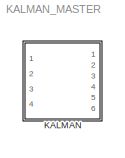
MODEL KALMAN_MASTER
KIND library
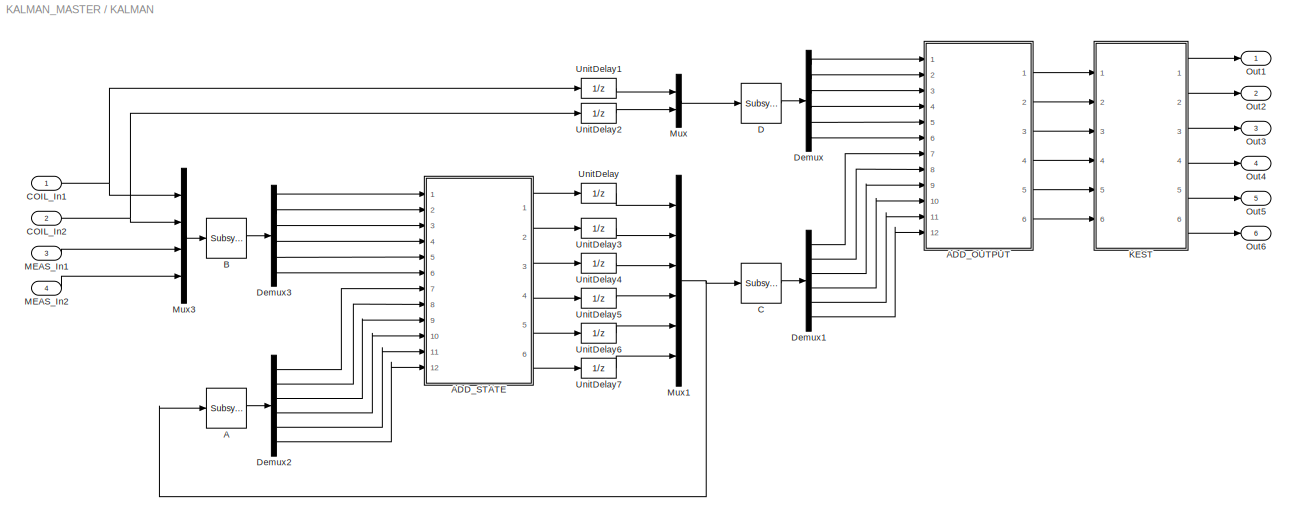
BLOCK [SubSystem] KALMAN
  Ports = [4, 6]
  RequestExecContextInheritance = off
  SID = 16
  Variant = off
BLOCK [Reference] KALMAN/A  REF=cdsMuxMatrix/Subsystem
  AttributesFormatString = %<Tag>
  Description = Any size matrix. Inputs and outputs must be connected using Mux and Demux parts.
  Ports = [1, 1]
  SID = 4
  SourceBlock = cdsMuxMatrix/Subsystem
  SourceType = SubSystem
  Tag = cdsMuxMatrix
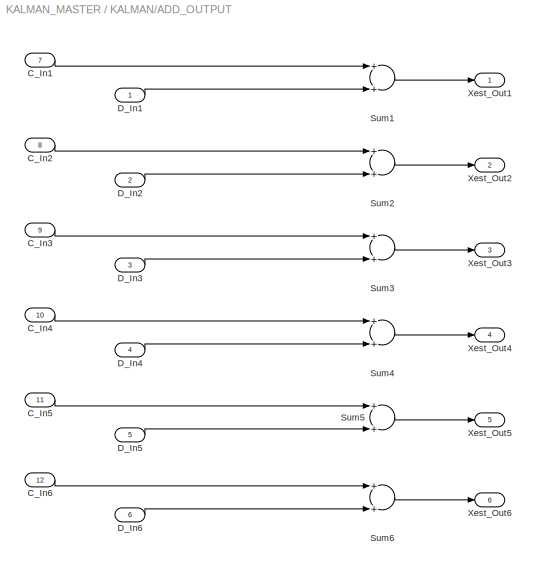
BLOCK [SubSystem] KALMAN/ADD_OUTPUT
  Ports = [12, 6]
  RequestExecContextInheritance = off
  SID = 59
  Variant = off
BLOCK [Inport] KALMAN/ADD_OUTPUT/C_In1
  IconDisplay = Port number
  Port = 7
  SID = 66
BLOCK [Inport] KALMAN/ADD_OUTPUT/C_In2
  IconDisplay = Port number
  Port = 8
  SID = 67
BLOCK [Inport] KALMAN/ADD_OUTPUT/C_In3
  IconDisplay = Port number
  Port = 9
  SID = 68
BLOCK [Inport] KALMAN/ADD_OUTPUT/C_In4
  IconDisplay = Port number
  Port = 10
  SID = 69
BLOCK [Inport] KALMAN/ADD_OUTPUT/C_In5
  IconDisplay = Port number
  Port = 11
  SID = 70
BLOCK [Inport] KALMAN/ADD_OUTPUT/C_In6
  IconDisplay = Port number
  Port = 12
  SID = 71
BLOCK [Inport] KALMAN/ADD_OUTPUT/D_In1
  IconDisplay = Port number
  SID = 60
BLOCK [Inport] KALMAN/ADD_OUTPUT/D_In2
  IconDisplay = Port number
  Port = 2
  SID = 61
BLOCK [Inport] KALMAN/ADD_OUTPUT/D_In3
  IconDisplay = Port number
  Port = 3
  SID = 62
BLOCK [Inport] KALMAN/ADD_OUTPUT/D_In4
  IconDisplay = Port number
  Port = 4
  SID = 63
BLOCK [Inport] KALMAN/ADD_OUTPUT/D_In5
  IconDisplay = Port number
  Port = 5
  SID = 64
BLOCK [Inport] KALMAN/ADD_OUTPUT/D_In6
  IconDisplay = Port number
  Port = 6
  SID = 65
BLOCK [Sum] KALMAN/ADD_OUTPUT/Sum1
  InputSameDT = off
  OutDataTypeStr = Inherit: Inherit via internal rule
  Ports = [2, 1]
  SID = 72
  SaturateOnIntegerOverflow = off
BLOCK [Sum] KALMAN/ADD_OUTPUT/Sum2
  InputSameDT = off
  OutDataTypeStr = Inherit: Inherit via internal rule
  Ports = [2, 1]
  SID = 73
  SaturateOnIntegerOverflow = off
BLOCK [Sum] KALMAN/ADD_OUTPUT/Sum3
  InputSameDT = off
  OutDataTypeStr = Inherit: Inherit via internal rule
  Ports = [2, 1]
  SID = 74
  SaturateOnIntegerOverflow = off
BLOCK [Sum] KALMAN/ADD_OUTPUT/Sum4
  InputSameDT = off
  OutDataTypeStr = Inherit: Inherit via internal rule
  Ports = [2, 1]
  SID = 75
  SaturateOnIntegerOverflow = off
BLOCK [Sum] KALMAN/ADD_OUTPUT/Sum5
  InputSameDT = off
  OutDataTypeStr = Inherit: Inherit via internal rule
  Ports = [2, 1]
  SID = 76
  SaturateOnIntegerOverflow = off
BLOCK [Sum] KALMAN/ADD_OUTPUT/Sum6
  InputSameDT = off
  OutDataTypeStr = Inherit: Inherit via internal rule
  Ports = [2, 1]
  SID = 77
  SaturateOnIntegerOverflow = off
BLOCK [Outport] KALMAN/ADD_OUTPUT/Xest_Out1
  IconDisplay = Port number
  SID = 78
BLOCK [Outport] KALMAN/ADD_OUTPUT/Xest_Out2
  IconDisplay = Port number
  Port = 2
  SID = 79
BLOCK [Outport] KALMAN/ADD_OUTPUT/Xest_Out3
  IconDisplay = Port number
  Port = 3
  SID = 80
BLOCK [Outport] KALMAN/ADD_OUTPUT/Xest_Out4
  IconDisplay = Port number
  Port = 4
  SID = 81
BLOCK [Outport] KALMAN/ADD_OUTPUT/Xest_Out5
  IconDisplay = Port number
  Port = 5
  SID = 82
BLOCK [Outport] KALMAN/ADD_OUTPUT/Xest_Out6
  IconDisplay = Port number
  Port = 6
  SID = 83
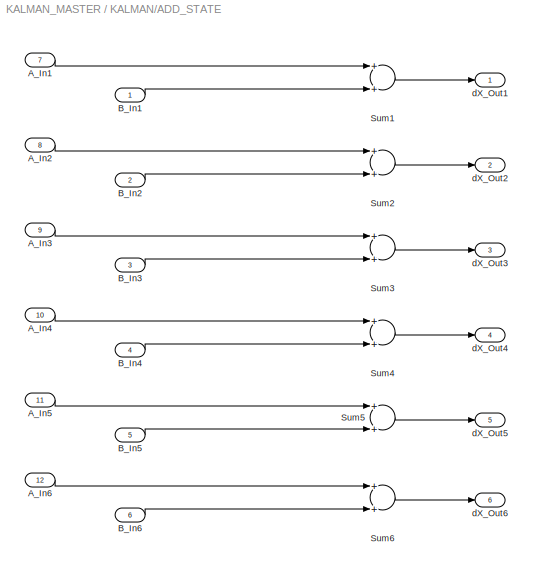
BLOCK [SubSystem] KALMAN/ADD_STATE
  Ports = [12, 6]
  RequestExecContextInheritance = off
  SID = 27
  Variant = off
BLOCK [Inport] KALMAN/ADD_STATE/A_In1
  IconDisplay = Port number
  Port = 7
  SID = 28
BLOCK [Inport] KALMAN/ADD_STATE/A_In2
  IconDisplay = Port number
  Port = 8
  SID = 30
BLOCK [Inport] KALMAN/ADD_STATE/A_In3
  IconDisplay = Port number
  Port = 9
  SID = 31
BLOCK [Inport] KALMAN/ADD_STATE/A_In4
  IconDisplay = Port number
  Port = 10
  SID = 32
BLOCK [Inport] KALMAN/ADD_STATE/A_In5
  IconDisplay = Port number
  Port = 11
  SID = 33
BLOCK [Inport] KALMAN/ADD_STATE/A_In6
  IconDisplay = Port number
  Port = 12
  SID = 34
BLOCK [Inport] KALMAN/ADD_STATE/B_In1
  IconDisplay = Port number
  SID = 40
BLOCK [Inport] KALMAN/ADD_STATE/B_In2
  IconDisplay = Port number
  Port = 2
  SID = 41
BLOCK [Inport] KALMAN/ADD_STATE/B_In3
  IconDisplay = Port number
  Port = 3
  SID = 42
BLOCK [Inport] KALMAN/ADD_STATE/B_In4
  IconDisplay = Port number
  Port = 4
  SID = 43
BLOCK [Inport] KALMAN/ADD_STATE/B_In5
  IconDisplay = Port number
  Port = 5
  SID = 44
BLOCK [Inport] KALMAN/ADD_STATE/B_In6
  IconDisplay = Port number
  Port = 6
  SID = 45
BLOCK [Sum] KALMAN/ADD_STATE/Sum1
  InputSameDT = off
  OutDataTypeStr = Inherit: Inherit via internal rule
  Ports = [2, 1]
  SID = 46
  SaturateOnIntegerOverflow = off
BLOCK [Sum] KALMAN/ADD_STATE/Sum2
  InputSameDT = off
  OutDataTypeStr = Inherit: Inherit via internal rule
  Ports = [2, 1]
  SID = 47
  SaturateOnIntegerOverflow = off
BLOCK [Sum] KALMAN/ADD_STATE/Sum3
  InputSameDT = off
  OutDataTypeStr = Inherit: Inherit via internal rule
  Ports = [2, 1]
  SID = 48
  SaturateOnIntegerOverflow = off
BLOCK [Sum] KALMAN/ADD_STATE/Sum4
  InputSameDT = off
  OutDataTypeStr = Inherit: Inherit via internal rule
  Ports = [2, 1]
  SID = 49
  SaturateOnIntegerOverflow = off
BLOCK [Sum] KALMAN/ADD_STATE/Sum5
  InputSameDT = off
  OutDataTypeStr = Inherit: Inherit via internal rule
  Ports = [2, 1]
  SID = 50
  SaturateOnIntegerOverflow = off
BLOCK [Sum] KALMAN/ADD_STATE/Sum6
  InputSameDT = off
  OutDataTypeStr = Inherit: Inherit via internal rule
  Ports = [2, 1]
  SID = 51
  SaturateOnIntegerOverflow = off
BLOCK [Outport] KALMAN/ADD_STATE/dX_Out1
  IconDisplay = Port number
  SID = 29
BLOCK [Outport] KALMAN/ADD_STATE/dX_Out2
  IconDisplay = Port number
  Port = 2
  SID = 35
BLOCK [Outport] KALMAN/ADD_STATE/dX_Out3
  IconDisplay = Port number
  Port = 3
  SID = 36
BLOCK [Outport] KALMAN/ADD_STATE/dX_Out4
  IconDisplay = Port number
  Port = 4
  SID = 37
BLOCK [Outport] KALMAN/ADD_STATE/dX_Out5
  IconDisplay = Port number
  Port = 5
  SID = 38
BLOCK [Outport] KALMAN/ADD_STATE/dX_Out6
  IconDisplay = Port number
  Port = 6
  SID = 39
BLOCK [Reference] KALMAN/B  REF=cdsMuxMatrix/Subsystem
  AttributesFormatString = %<Tag>
  Description = Any size matrix. Inputs and outputs must be connected using Mux and Demux parts.
  Ports = [1, 1]
  SID = 1
  SourceBlock = cdsMuxMatrix/Subsystem
  SourceType = SubSystem
  Tag = cdsMuxMatrix
BLOCK [Reference] KALMAN/C  REF=cdsMuxMatrix/Subsystem
  AttributesFormatString = %<Tag>
  Description = Any size matrix. Inputs and outputs must be connected using Mux and Demux parts.
  Ports = [1, 1]
  SID = 10
  SourceBlock = cdsMuxMatrix/Subsystem
  SourceType = SubSystem
  Tag = cdsMuxMatrix
BLOCK [Inport] KALMAN/COIL_In1
  IconDisplay = Port number
  SID = 2
BLOCK [Inport] KALMAN/COIL_In2
  IconDisplay = Port number
  Port = 2
  SID = 58
BLOCK [Reference] KALMAN/D  REF=cdsMuxMatrix/Subsystem
  AttributesFormatString = %<Tag>
  Description = Any size matrix. Inputs and outputs must be connected using Mux and Demux parts.
  Ports = [1, 1]
  SID = 12
  SourceBlock = cdsMuxMatrix/Subsystem
  SourceType = SubSystem
  Tag = cdsMuxMatrix
BLOCK [Demux] KALMAN/Demux
  DisplayOption = bar
  Outputs = 6
  Ports = [1, 6]
  SID = 20
BLOCK [Demux] KALMAN/Demux1
  DisplayOption = bar
  Outputs = 6
  Ports = [1, 6]
  SID = 21
BLOCK [Demux] KALMAN/Demux2
  DisplayOption = bar
  Outputs = 6
  Ports = [1, 6]
  SID = 24
BLOCK [Demux] KALMAN/Demux3
  DisplayOption = bar
  Outputs = 6
  Ports = [1, 6]
  SID = 26
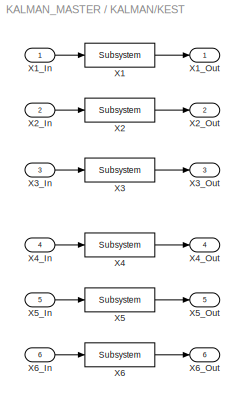
BLOCK [SubSystem] KALMAN/KEST
  Ports = [6, 6]
  RequestExecContextInheritance = off
  SID = 92
  Variant = off
BLOCK [Reference] KALMAN/KEST/X1  REF=cdsFilt/Subsystem
  AttributesFormatString = %<Tag>
  Description = Purpose:                                                                                                                                                                                                                                  \nStandard CDS IIR filter module.                                                                                                                                     ...<+1302ch>  <repeated x6 — deduplicated; at blocks: X1, X2, X3, X4, X5, X6>
  Ports = [1, 1]
  SID = 99
  SourceBlock = cdsFilt/Subsystem
  SourceType = SubSystem
  Tag = cdsFilt
BLOCK [Inport] KALMAN/KEST/X1_In
  IconDisplay = Port number
  SID = 93
BLOCK [Outport] KALMAN/KEST/X1_Out
  IconDisplay = Port number
  SID = 105
BLOCK [Reference] KALMAN/KEST/X2  REF=cdsFilt/Subsystem
  AttributesFormatString = %<Tag>
  Ports = [1, 1]
  SID = 100
  SourceBlock = cdsFilt/Subsystem
  SourceType = SubSystem
  Tag = cdsFilt
BLOCK [Inport] KALMAN/KEST/X2_In
  IconDisplay = Port number
  Port = 2
  SID = 94
BLOCK [Outport] KALMAN/KEST/X2_Out
  IconDisplay = Port number
  Port = 2
  SID = 106
BLOCK [Reference] KALMAN/KEST/X3  REF=cdsFilt/Subsystem
  AttributesFormatString = %<Tag>
  Ports = [1, 1]
  SID = 101
  SourceBlock = cdsFilt/Subsystem
  SourceType = SubSystem
  Tag = cdsFilt
BLOCK [Inport] KALMAN/KEST/X3_In
  IconDisplay = Port number
  Port = 3
  SID = 95
BLOCK [Outport] KALMAN/KEST/X3_Out
  IconDisplay = Port number
  Port = 3
  SID = 107
BLOCK [Reference] KALMAN/KEST/X4  REF=cdsFilt/Subsystem
  AttributesFormatString = %<Tag>
  Ports = [1, 1]
  SID = 102
  SourceBlock = cdsFilt/Subsystem
  SourceType = SubSystem
  Tag = cdsFilt
BLOCK [Inport] KALMAN/KEST/X4_In
  IconDisplay = Port number
  Port = 4
  SID = 96
BLOCK [Outport] KALMAN/KEST/X4_Out
  IconDisplay = Port number
  Port = 4
  SID = 108
BLOCK [Reference] KALMAN/KEST/X5  REF=cdsFilt/Subsystem
  AttributesFormatString = %<Tag>
  Ports = [1, 1]
  SID = 103
  SourceBlock = cdsFilt/Subsystem
  SourceType = SubSystem
  Tag = cdsFilt
BLOCK [Inport] KALMAN/KEST/X5_In
  IconDisplay = Port number
  Port = 5
  SID = 97
BLOCK [Outport] KALMAN/KEST/X5_Out
  IconDisplay = Port number
  Port = 5
  SID = 109
BLOCK [Reference] KALMAN/KEST/X6  REF=cdsFilt/Subsystem
  AttributesFormatString = %<Tag>
  Ports = [1, 1]
  SID = 104
  SourceBlock = cdsFilt/Subsystem
  SourceType = SubSystem
  Tag = cdsFilt
BLOCK [Inport] KALMAN/KEST/X6_In
  IconDisplay = Port number
  Port = 6
  SID = 98
BLOCK [Outport] KALMAN/KEST/X6_Out
  IconDisplay = Port number
  Port = 6
  SID = 110
BLOCK [Inport] KALMAN/MEAS_In1
  IconDisplay = Port number
  Port = 3
  SID = 89
BLOCK [Inport] KALMAN/MEAS_In2
  IconDisplay = Port number
  Port = 4
  SID = 90
BLOCK [Mux] KALMAN/Mux
  DisplayOption = bar
  Inputs = 2
  Ports = [2, 1]
  SID = 19
BLOCK [Mux] KALMAN/Mux1
  DisplayOption = bar
  Inputs = 6
  Ports = [6, 1]
  SID = 22
BLOCK [Mux] KALMAN/Mux3
  DisplayOption = bar
  Ports = [4, 1]
  SID = 25
BLOCK [Outport] KALMAN/Out1
  IconDisplay = Port number
  SID = 15
BLOCK [Outport] KALMAN/Out2
  IconDisplay = Port number
  Port = 2
  SID = 84
BLOCK [Outport] KALMAN/Out3
  IconDisplay = Port number
  Port = 3
  SID = 85
BLOCK [Outport] KALMAN/Out4
  IconDisplay = Port number
  Port = 4
  SID = 86
BLOCK [Outport] KALMAN/Out5
  IconDisplay = Port number
  Port = 5
  SID = 87
BLOCK [Outport] KALMAN/Out6
  IconDisplay = Port number
  Port = 6
  SID = 88
BLOCK [UnitDelay] KALMAN/UnitDelay
  SID = 8
BLOCK [UnitDelay] KALMAN/UnitDelay1
  SID = 11
BLOCK [UnitDelay] KALMAN/UnitDelay2
  SID = 52
BLOCK [UnitDelay] KALMAN/UnitDelay3
  SID = 53
BLOCK [UnitDelay] KALMAN/UnitDelay4
  SID = 54
BLOCK [UnitDelay] KALMAN/UnitDelay5
  SID = 55
BLOCK [UnitDelay] KALMAN/UnitDelay6
  SID = 56
BLOCK [UnitDelay] KALMAN/UnitDelay7
  SID = 57
LINE KALMAN/A:1 -> KALMAN/Demux2:1
LINE KALMAN/ADD_OUTPUT/C_In1:1 -> KALMAN/ADD_OUTPUT/Sum1:1
LINE KALMAN/ADD_OUTPUT/C_In2:1 -> KALMAN/ADD_OUTPUT/Sum2:1
LINE KALMAN/ADD_OUTPUT/C_In3:1 -> KALMAN/ADD_OUTPUT/Sum3:1
LINE KALMAN/ADD_OUTPUT/C_In4:1 -> KALMAN/ADD_OUTPUT/Sum4:1
LINE KALMAN/ADD_OUTPUT/C_In5:1 -> KALMAN/ADD_OUTPUT/Sum5:1
LINE KALMAN/ADD_OUTPUT/C_In6:1 -> KALMAN/ADD_OUTPUT/Sum6:1
LINE KALMAN/ADD_OUTPUT/D_In1:1 -> KALMAN/ADD_OUTPUT/Sum1:2
LINE KALMAN/ADD_OUTPUT/D_In2:1 -> KALMAN/ADD_OUTPUT/Sum2:2
LINE KALMAN/ADD_OUTPUT/D_In3:1 -> KALMAN/ADD_OUTPUT/Sum3:2
LINE KALMAN/ADD_OUTPUT/D_In4:1 -> KALMAN/ADD_OUTPUT/Sum4:2
LINE KALMAN/ADD_OUTPUT/D_In5:1 -> KALMAN/ADD_OUTPUT/Sum5:2
LINE KALMAN/ADD_OUTPUT/D_In6:1 -> KALMAN/ADD_OUTPUT/Sum6:2
LINE KALMAN/ADD_OUTPUT/Sum1:1 -> KALMAN/ADD_OUTPUT/Xest_Out1:1
LINE KALMAN/ADD_OUTPUT/Sum2:1 -> KALMAN/ADD_OUTPUT/Xest_Out2:1
LINE KALMAN/ADD_OUTPUT/Sum3:1 -> KALMAN/ADD_OUTPUT/Xest_Out3:1
LINE KALMAN/ADD_OUTPUT/Sum4:1 -> KALMAN/ADD_OUTPUT/Xest_Out4:1
LINE KALMAN/ADD_OUTPUT/Sum5:1 -> KALMAN/ADD_OUTPUT/Xest_Out5:1
LINE KALMAN/ADD_OUTPUT/Sum6:1 -> KALMAN/ADD_OUTPUT/Xest_Out6:1
LINE KALMAN/ADD_OUTPUT:1 -> KALMAN/KEST:1
LINE KALMAN/ADD_OUTPUT:2 -> KALMAN/KEST:2
LINE KALMAN/ADD_OUTPUT:3 -> KALMAN/KEST:3
LINE KALMAN/ADD_OUTPUT:4 -> KALMAN/KEST:4
LINE KALMAN/ADD_OUTPUT:5 -> KALMAN/KEST:5
LINE KALMAN/ADD_OUTPUT:6 -> KALMAN/KEST:6
LINE KALMAN/ADD_STATE/A_In1:1 -> KALMAN/ADD_STATE/Sum1:1
LINE KALMAN/ADD_STATE/A_In2:1 -> KALMAN/ADD_STATE/Sum2:1
LINE KALMAN/ADD_STATE/A_In3:1 -> KALMAN/ADD_STATE/Sum3:1
LINE KALMAN/ADD_STATE/A_In4:1 -> KALMAN/ADD_STATE/Sum4:1
LINE KALMAN/ADD_STATE/A_In5:1 -> KALMAN/ADD_STATE/Sum5:1
LINE KALMAN/ADD_STATE/A_In6:1 -> KALMAN/ADD_STATE/Sum6:1
LINE KALMAN/ADD_STATE/B_In1:1 -> KALMAN/ADD_STATE/Sum1:2
LINE KALMAN/ADD_STATE/B_In2:1 -> KALMAN/ADD_STATE/Sum2:2
LINE KALMAN/ADD_STATE/B_In3:1 -> KALMAN/ADD_STATE/Sum3:2
LINE KALMAN/ADD_STATE/B_In4:1 -> KALMAN/ADD_STATE/Sum4:2
LINE KALMAN/ADD_STATE/B_In5:1 -> KALMAN/ADD_STATE/Sum5:2
LINE KALMAN/ADD_STATE/B_In6:1 -> KALMAN/ADD_STATE/Sum6:2
LINE KALMAN/ADD_STATE/Sum1:1 -> KALMAN/ADD_STATE/dX_Out1:1
LINE KALMAN/ADD_STATE/Sum2:1 -> KALMAN/ADD_STATE/dX_Out2:1
LINE KALMAN/ADD_STATE/Sum3:1 -> KALMAN/ADD_STATE/dX_Out3:1
LINE KALMAN/ADD_STATE/Sum4:1 -> KALMAN/ADD_STATE/dX_Out4:1
LINE KALMAN/ADD_STATE/Sum5:1 -> KALMAN/ADD_STATE/dX_Out5:1
LINE KALMAN/ADD_STATE/Sum6:1 -> KALMAN/ADD_STATE/dX_Out6:1
LINE KALMAN/ADD_STATE:1 -> KALMAN/UnitDelay:1
LINE KALMAN/ADD_STATE:2 -> KALMAN/UnitDelay3:1
LINE KALMAN/ADD_STATE:3 -> KALMAN/UnitDelay4:1
LINE KALMAN/ADD_STATE:4 -> KALMAN/UnitDelay5:1
LINE KALMAN/ADD_STATE:5 -> KALMAN/UnitDelay6:1
LINE KALMAN/ADD_STATE:6 -> KALMAN/UnitDelay7:1
LINE KALMAN/B:1 -> KALMAN/Demux3:1
LINE KALMAN/C:1 -> KALMAN/Demux1:1
NET KALMAN/COIL_In1:1 -> KALMAN/Mux3:1, KALMAN/UnitDelay1:1
NET KALMAN/COIL_In2:1 -> KALMAN/Mux3:2, KALMAN/UnitDelay2:1
LINE KALMAN/D:1 -> KALMAN/Demux:1
LINE KALMAN/Demux1:1 -> KALMAN/ADD_OUTPUT:7
LINE KALMAN/Demux1:2 -> KALMAN/ADD_OUTPUT:8
LINE KALMAN/Demux1:3 -> KALMAN/ADD_OUTPUT:9
LINE KALMAN/Demux1:4 -> KALMAN/ADD_OUTPUT:10
LINE KALMAN/Demux1:5 -> KALMAN/ADD_OUTPUT:11
LINE KALMAN/Demux1:6 -> KALMAN/ADD_OUTPUT:12
LINE KALMAN/Demux2:1 -> KALMAN/ADD_STATE:7
LINE KALMAN/Demux2:2 -> KALMAN/ADD_STATE:8
LINE KALMAN/Demux2:3 -> KALMAN/ADD_STATE:9
LINE KALMAN/Demux2:4 -> KALMAN/ADD_STATE:10
LINE KALMAN/Demux2:5 -> KALMAN/ADD_STATE:11
LINE KALMAN/Demux2:6 -> KALMAN/ADD_STATE:12
LINE KALMAN/Demux3:1 -> KALMAN/ADD_STATE:1
LINE KALMAN/Demux3:2 -> KALMAN/ADD_STATE:2
LINE KALMAN/Demux3:3 -> KALMAN/ADD_STATE:3
LINE KALMAN/Demux3:4 -> KALMAN/ADD_STATE:4
LINE KALMAN/Demux3:5 -> KALMAN/ADD_STATE:5
LINE KALMAN/Demux3:6 -> KALMAN/ADD_STATE:6
LINE KALMAN/Demux:1 -> KALMAN/ADD_OUTPUT:1
LINE KALMAN/Demux:2 -> KALMAN/ADD_OUTPUT:2
LINE KALMAN/Demux:3 -> KALMAN/ADD_OUTPUT:3
LINE KALMAN/Demux:4 -> KALMAN/ADD_OUTPUT:4
LINE KALMAN/Demux:5 -> KALMAN/ADD_OUTPUT:5
LINE KALMAN/Demux:6 -> KALMAN/ADD_OUTPUT:6
LINE KALMAN/KEST/X1:1 -> KALMAN/KEST/X1_Out:1
LINE KALMAN/KEST/X1_In:1 -> KALMAN/KEST/X1:1
LINE KALMAN/KEST/X2:1 -> KALMAN/KEST/X2_Out:1
LINE KALMAN/KEST/X2_In:1 -> KALMAN/KEST/X2:1
LINE KALMAN/KEST/X3:1 -> KALMAN/KEST/X3_Out:1
LINE KALMAN/KEST/X3_In:1 -> KALMAN/KEST/X3:1
LINE KALMAN/KEST/X4:1 -> KALMAN/KEST/X4_Out:1
LINE KALMAN/KEST/X4_In:1 -> KALMAN/KEST/X4:1
LINE KALMAN/KEST/X5:1 -> KALMAN/KEST/X5_Out:1
LINE KALMAN/KEST/X5_In:1 -> KALMAN/KEST/X5:1
LINE KALMAN/KEST/X6:1 -> KALMAN/KEST/X6_Out:1
LINE KALMAN/KEST/X6_In:1 -> KALMAN/KEST/X6:1
LINE KALMAN/KEST:1 -> KALMAN/Out1:1
LINE KALMAN/KEST:2 -> KALMAN/Out2:1
LINE KALMAN/KEST:3 -> KALMAN/Out3:1
LINE KALMAN/KEST:4 -> KALMAN/Out4:1
LINE KALMAN/KEST:5 -> KALMAN/Out5:1
LINE KALMAN/KEST:6 -> KALMAN/Out6:1
LINE KALMAN/MEAS_In1:1 -> KALMAN/Mux3:3
LINE KALMAN/MEAS_In2:1 -> KALMAN/Mux3:4
NET KALMAN/Mux1:1 -> KALMAN/A:1, KALMAN/C:1
LINE KALMAN/Mux3:1 -> KALMAN/B:1
LINE KALMAN/Mux:1 -> KALMAN/D:1
LINE KALMAN/UnitDelay1:1 -> KALMAN/Mux:1
LINE KALMAN/UnitDelay2:1 -> KALMAN/Mux:2
LINE KALMAN/UnitDelay3:1 -> KALMAN/Mux1:2
LINE KALMAN/UnitDelay4:1 -> KALMAN/Mux1:3
LINE KALMAN/UnitDelay5:1 -> KALMAN/Mux1:4
LINE KALMAN/UnitDelay6:1 -> KALMAN/Mux1:5
LINE KALMAN/UnitDelay7:1 -> KALMAN/Mux1:6
LINE KALMAN/UnitDelay:1 -> KALMAN/Mux1:1
note: NET lines group one-source signal fan-out (src -> all destinations, sorted); 1:1 wires keep LINE
